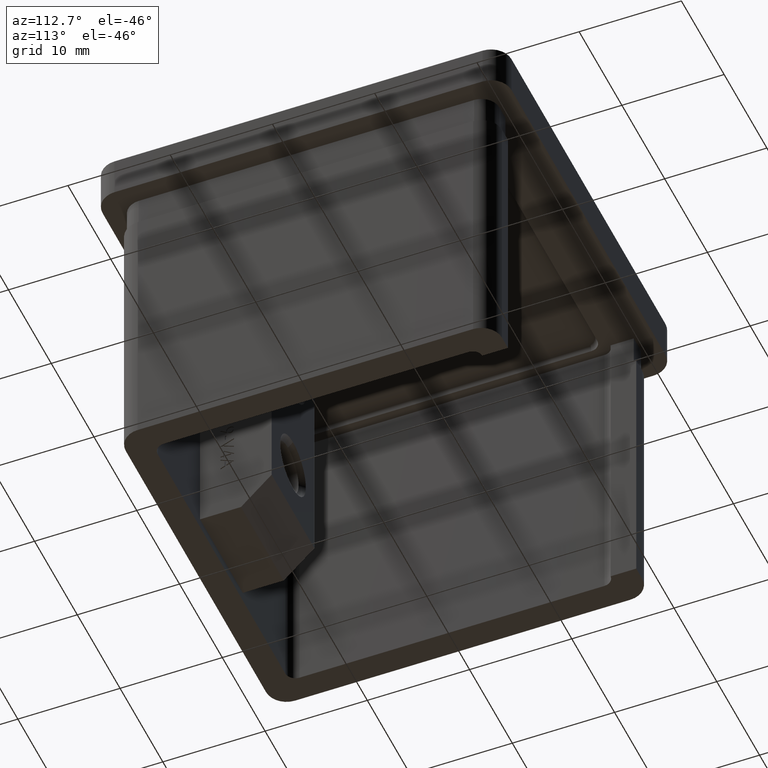
[diagram: clean part render]
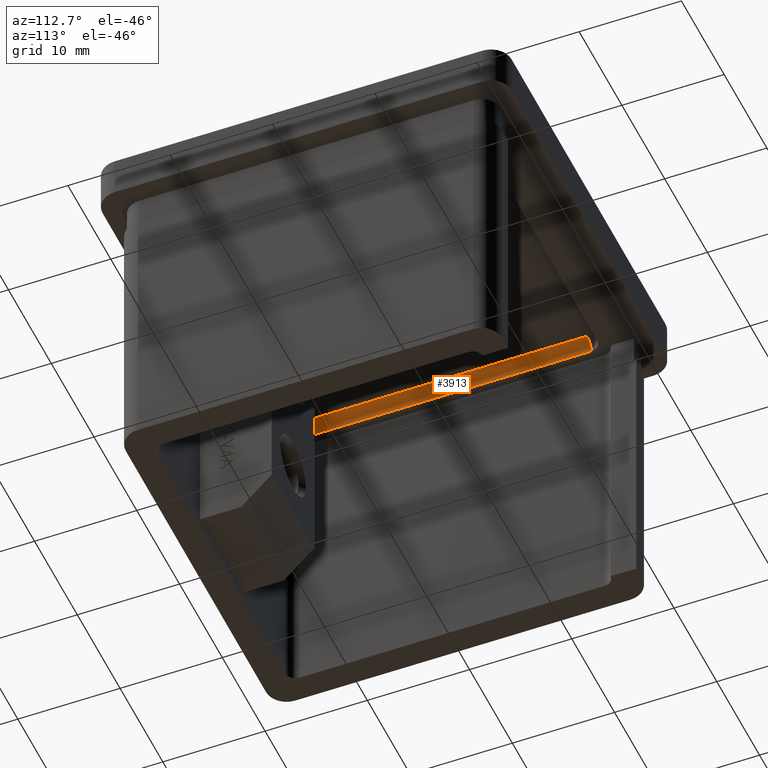
[diagram: same view with one face highlighted and labeled with its STEP entity id]
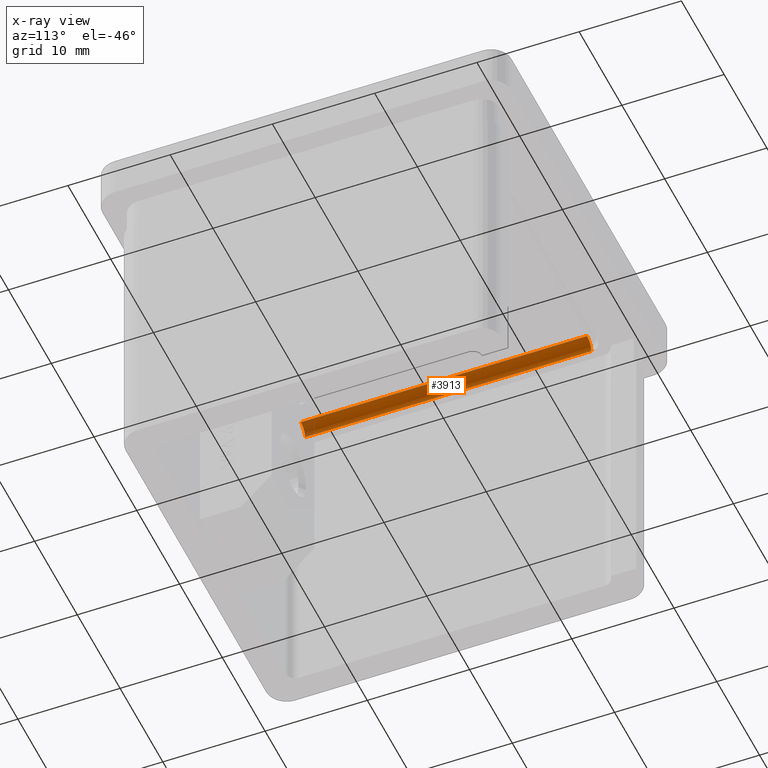
[diagram: x-ray of the same camera — body ghosted, the highlighted face saturated]
A machine part, auxiliary view. The second image highlights one B-rep face of the part: STEP entity #3913.
The next image is the same camera in x-ray: the body ghosted, the highlighted face saturated — about 4% of this face is hidden behind the body in this view.
In plain terms, the highlighted cylindrical surface (edge-blend (fillet) strip) has radius 1 mm, axis along (0, 1, 0).
Its self-contained STEP definition (entity closure, byte-faithful):
#189 = CARTESIAN_POINT ( 'NONE',  ( -13.99999999999999822, 13.99999999999999467, -3.000000000000000000 ) ) ;
#770 = LINE ( 'NONE', #12664, #13820 ) ;
#1572 = DIRECTION ( 'NONE',  ( 0.000000000000000000, -1.000000000000000000, 0.000000000000000000 ) ) ;
#1604 = EDGE_CURVE ( 'NONE', #13969, #2415, #12268, .T. ) ;
#1845 = ORIENTED_EDGE ( 'NONE', *, *, #11679, .T. ) ;
#2073 = AXIS2_PLACEMENT_3D ( 'NONE', #9140, #1572, #9194 ) ;
#2415 = VERTEX_POINT ( 'NONE', #3978 ) ;
#2890 = AXIS2_PLACEMENT_3D ( 'NONE', #15060, #8715, #15221 ) ;
#3184 = CARTESIAN_POINT ( 'NONE',  ( -15.00000000000000355, -14.00000000000000178, -4.000000000000000000 ) ) ;
#3801 = ORIENTED_EDGE ( 'NONE', *, *, #1604, .T. ) ;
#3913 = ADVANCED_FACE ( 'NONE', ( #8058 ), #4909, .F. ) ;
#3978 = CARTESIAN_POINT ( 'NONE',  ( -15.00000000000000000, 13.99999999999999467, -4.000000000000000000 ) ) ;
#4387 = CIRCLE ( 'NONE', #2890, 1.000000000000000000 ) ;
#4909 = CYLINDRICAL_SURFACE ( 'NONE', #8902, 0.9999999999999991118 ) ;
#5316 = DIRECTION ( 'NONE',  ( -1.000000000000000000, 1.156482317317872218E-16, 0.000000000000000000 ) ) ;
#5733 = VECTOR ( 'NONE', #9456, 1000.000000000000000 ) ;
#8058 = FACE_OUTER_BOUND ( 'NONE', #11071, .T. ) ;
#8715 = DIRECTION ( 'NONE',  ( 0.000000000000000000, -1.000000000000000000, 0.000000000000000000 ) ) ;
#8860 = DIRECTION ( 'NONE',  ( 1.156482317317871725E-16, 1.000000000000000000, 0.000000000000000000 ) ) ;
#8902 = AXIS2_PLACEMENT_3D ( 'NONE', #11739, #11790, #5316 ) ;
#9140 = CARTESIAN_POINT ( 'NONE',  ( -14.00000000000000178, -14.00000000000000178, -4.000000000000000000 ) ) ;
#9194 = DIRECTION ( 'NONE',  ( 0.000000000000000000, 0.000000000000000000, -1.000000000000000000 ) ) ;
#9223 = EDGE_CURVE ( 'NONE', #13444, #2415, #4387, .T. ) ;
#9456 = DIRECTION ( 'NONE',  ( 1.156482317317871478E-16, 1.000000000000000000, -0.000000000000000000 ) ) ;
#9942 = CARTESIAN_POINT ( 'NONE',  ( -14.00000000000000178, -14.00000000000000178, -3.000000000000000000 ) ) ;
#10131 = ORIENTED_EDGE ( 'NONE', *, *, #13823, .F. ) ;
#10514 = CIRCLE ( 'NONE', #2073, 1.000000000000000000 ) ;
#11071 = EDGE_LOOP ( 'NONE', ( #1845, #3801, #12244, #10131 ) ) ;
#11679 = EDGE_CURVE ( 'NONE', #15249, #13969, #10514, .T. ) ;
#11739 = CARTESIAN_POINT ( 'NONE',  ( -14.00000000000000000, 1.619075244245020415E-15, -4.000000000000000000 ) ) ;
#11790 = DIRECTION ( 'NONE',  ( 1.156482317317871725E-16, 1.000000000000000000, 0.000000000000000000 ) ) ;
#12244 = ORIENTED_EDGE ( 'NONE', *, *, #9223, .F. ) ;
#12268 = LINE ( 'NONE', #14490, #5733 ) ;
#12664 = CARTESIAN_POINT ( 'NONE',  ( -14.00000000000000000, 1.619075244245020415E-15, -3.000000000000000000 ) ) ;
#13444 = VERTEX_POINT ( 'NONE', #189 ) ;
#13820 = VECTOR ( 'NONE', #8860, 1000.000000000000000 ) ;
#13823 = EDGE_CURVE ( 'NONE', #15249, #13444, #770, .T. ) ;
#13969 = VERTEX_POINT ( 'NONE', #3184 ) ;
#14490 = CARTESIAN_POINT ( 'NONE',  ( -15.00000000000000000, 14.99999999999999645, -4.000000000000000000 ) ) ;
#15060 = CARTESIAN_POINT ( 'NONE',  ( -13.99999999999999822, 13.99999999999999467, -4.000000000000000000 ) ) ;
#15221 = DIRECTION ( 'NONE',  ( 0.000000000000000000, 0.000000000000000000, -1.000000000000000000 ) ) ;
#15249 = VERTEX_POINT ( 'NONE', #9942 ) ;